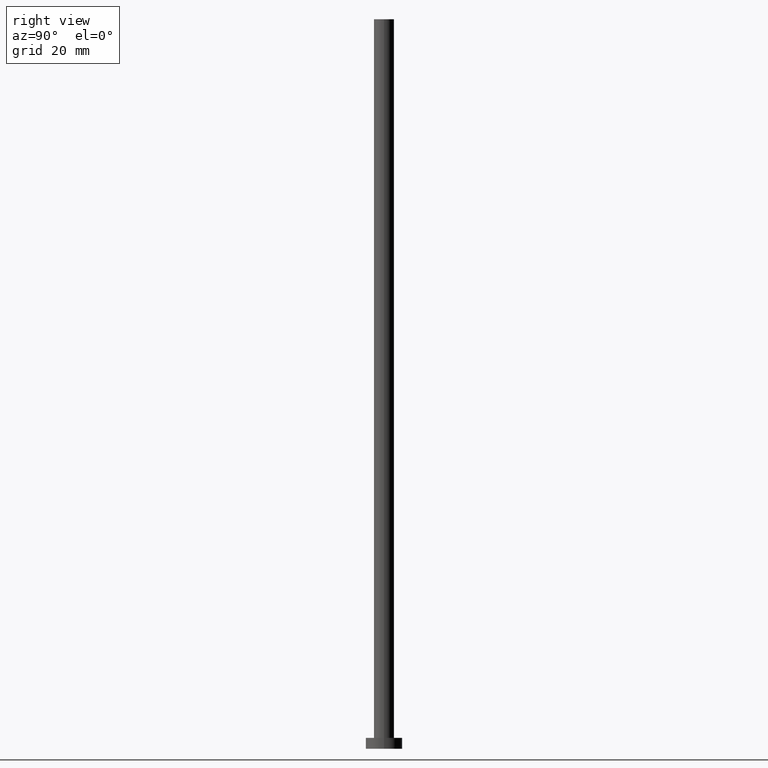
[diagram: clean part render]
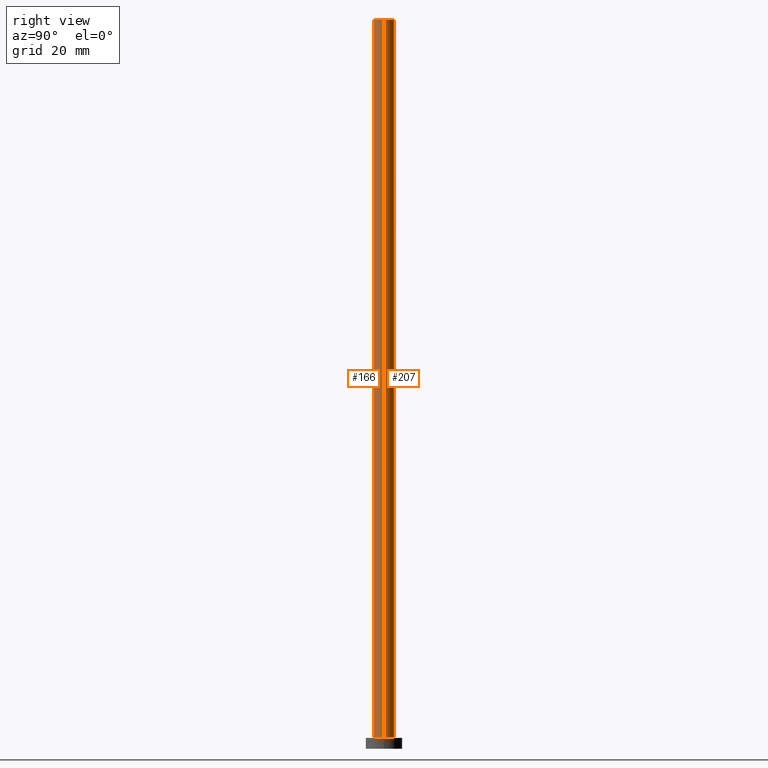
[diagram: same view with one multi-face feature highlighted, each face labeled with its STEP entity id]
A machine part, right view. The highlighted faces form ONE feature: a constant-radius fillet chain: 2 tangent blend faces with common blend radius 2.75 mm. The faces share edges in the B-rep.
Their STEP definitions:
[1] entity #166 (Cylinder):
#5 = ORIENTED_EDGE ( 'NONE', *, *, #229, .T. ) ;
#6 = AXIS2_PLACEMENT_3D ( 'NONE', #184, #46, #92 ) ;
#8 = ORIENTED_EDGE ( 'NONE', *, *, #138, .T. ) ;
#10 = AXIS2_PLACEMENT_3D ( 'NONE', #114, #251, #14 ) ;
#12 = DIRECTION ( 'NONE',  ( -0.000000000000000000, -0.000000000000000000, -1.000000000000000000 ) ) ;
#13 = CARTESIAN_POINT ( 'NONE',  ( 0.000000000000000000, 0.000000000000000000, 200.0000000000000000 ) ) ;
#14 = DIRECTION ( 'NONE',  ( 1.000000000000000000, 0.000000000000000000, 0.000000000000000000 ) ) ;
#18 = EDGE_CURVE ( 'NONE', #27, #128, #221, .T. ) ;
#19 = VERTEX_POINT ( 'NONE', #68 ) ;
#27 = VERTEX_POINT ( 'NONE', #181 ) ;
#29 = CARTESIAN_POINT ( 'NONE',  ( 2.750000000000000000, 3.367778697655221012E-16, 3.000000000000000000 ) ) ;
#39 = ORIENTED_EDGE ( 'NONE', *, *, #82, .F. ) ;
#44 = DIRECTION ( 'NONE',  ( -0.000000000000000000, -0.000000000000000000, -1.000000000000000000 ) ) ;
#46 = DIRECTION ( 'NONE',  ( 0.000000000000000000, 0.000000000000000000, 1.000000000000000000 ) ) ;
#50 = CARTESIAN_POINT ( 'NONE',  ( -2.750000000000000000, 0.000000000000000000, 200.0000000000000000 ) ) ;
#53 = DIRECTION ( 'NONE',  ( -1.000000000000000000, 0.000000000000000000, 0.000000000000000000 ) ) ;
#59 = DIRECTION ( 'NONE',  ( -0.000000000000000000, -0.000000000000000000, -1.000000000000000000 ) ) ;
#68 = CARTESIAN_POINT ( 'NONE',  ( -2.750000000000000000, 0.000000000000000000, 3.000000000000000000 ) ) ;
#82 = EDGE_CURVE ( 'NONE', #128, #136, #90, .T. ) ;
#90 = LINE ( 'NONE', #238, #245 ) ;
#92 = DIRECTION ( 'NONE',  ( 1.000000000000000000, 0.000000000000000000, 0.000000000000000000 ) ) ;
#99 = VECTOR ( 'NONE', #59, 1000.000000000000000 ) ;
#111 = EDGE_LOOP ( 'NONE', ( #39, #135, #8, #5 ) ) ;
#114 = CARTESIAN_POINT ( 'NONE',  ( 0.000000000000000000, 0.000000000000000000, 3.000000000000000000 ) ) ;
#128 = VERTEX_POINT ( 'NONE', #242 ) ;
#135 = ORIENTED_EDGE ( 'NONE', *, *, #18, .F. ) ;
#136 = VERTEX_POINT ( 'NONE', #29 ) ;
#138 = EDGE_CURVE ( 'NONE', #27, #19, #219, .T. ) ;
#157 = FACE_OUTER_BOUND ( 'NONE', #111, .T. ) ;
#166 = ADVANCED_FACE ( 'NONE', ( #157 ), #189, .T. ) ;
#175 = CIRCLE ( 'NONE', #10, 2.750000000000000000 ) ;
#181 = CARTESIAN_POINT ( 'NONE',  ( -2.750000000000000000, 0.000000000000000000, 200.0000000000000000 ) ) ;
#184 = CARTESIAN_POINT ( 'NONE',  ( 0.000000000000000000, 0.000000000000000000, 200.0000000000000000 ) ) ;
#189 = CYLINDRICAL_SURFACE ( 'NONE', #254, 2.750000000000000000 ) ;
#219 = LINE ( 'NONE', #50, #99 ) ;
#221 = CIRCLE ( 'NONE', #6, 2.750000000000000000 ) ;
#229 = EDGE_CURVE ( 'NONE', #19, #136, #175, .T. ) ;
#238 = CARTESIAN_POINT ( 'NONE',  ( 2.750000000000000000, 3.367778697655221012E-16, 200.0000000000000000 ) ) ;
#242 = CARTESIAN_POINT ( 'NONE',  ( 2.750000000000000000, 3.367778697655221012E-16, 200.0000000000000000 ) ) ;
#245 = VECTOR ( 'NONE', #44, 1000.000000000000000 ) ;
#251 = DIRECTION ( 'NONE',  ( 0.000000000000000000, 0.000000000000000000, 1.000000000000000000 ) ) ;
#254 = AXIS2_PLACEMENT_3D ( 'NONE', #13, #12, #53 ) ;
[2] entity #207 (Cylinder):
#9 = CARTESIAN_POINT ( 'NONE',  ( 0.000000000000000000, 0.000000000000000000, 3.000000000000000000 ) ) ;
#16 = FACE_OUTER_BOUND ( 'NONE', #177, .T. ) ;
#19 = VERTEX_POINT ( 'NONE', #68 ) ;
#27 = VERTEX_POINT ( 'NONE', #181 ) ;
#29 = CARTESIAN_POINT ( 'NONE',  ( 2.750000000000000000, 3.367778697655221012E-16, 3.000000000000000000 ) ) ;
#37 = AXIS2_PLACEMENT_3D ( 'NONE', #228, #76, #101 ) ;
#44 = DIRECTION ( 'NONE',  ( -0.000000000000000000, -0.000000000000000000, -1.000000000000000000 ) ) ;
#50 = CARTESIAN_POINT ( 'NONE',  ( -2.750000000000000000, 0.000000000000000000, 200.0000000000000000 ) ) ;
#55 = DIRECTION ( 'NONE',  ( -1.000000000000000000, 0.000000000000000000, 0.000000000000000000 ) ) ;
#59 = DIRECTION ( 'NONE',  ( -0.000000000000000000, -0.000000000000000000, -1.000000000000000000 ) ) ;
#68 = CARTESIAN_POINT ( 'NONE',  ( -2.750000000000000000, 0.000000000000000000, 3.000000000000000000 ) ) ;
#76 = DIRECTION ( 'NONE',  ( 0.000000000000000000, 0.000000000000000000, 1.000000000000000000 ) ) ;
#82 = EDGE_CURVE ( 'NONE', #128, #136, #90, .T. ) ;
#90 = LINE ( 'NONE', #238, #245 ) ;
#95 = ORIENTED_EDGE ( 'NONE', *, *, #82, .T. ) ;
#99 = VECTOR ( 'NONE', #59, 1000.000000000000000 ) ;
#101 = DIRECTION ( 'NONE',  ( 1.000000000000000000, 0.000000000000000000, 0.000000000000000000 ) ) ;
#115 = CIRCLE ( 'NONE', #190, 2.750000000000000000 ) ;
#122 = EDGE_CURVE ( 'NONE', #136, #19, #115, .T. ) ;
#127 = DIRECTION ( 'NONE',  ( 0.000000000000000000, 0.000000000000000000, 1.000000000000000000 ) ) ;
#128 = VERTEX_POINT ( 'NONE', #242 ) ;
#129 = ORIENTED_EDGE ( 'NONE', *, *, #122, .T. ) ;
#136 = VERTEX_POINT ( 'NONE', #29 ) ;
#138 = EDGE_CURVE ( 'NONE', #27, #19, #219, .T. ) ;
#146 = CIRCLE ( 'NONE', #37, 2.750000000000000000 ) ;
#149 = CYLINDRICAL_SURFACE ( 'NONE', #241, 2.750000000000000000 ) ;
#165 = DIRECTION ( 'NONE',  ( 1.000000000000000000, 0.000000000000000000, 0.000000000000000000 ) ) ;
#168 = DIRECTION ( 'NONE',  ( -0.000000000000000000, -0.000000000000000000, -1.000000000000000000 ) ) ;
#171 = CARTESIAN_POINT ( 'NONE',  ( 0.000000000000000000, 0.000000000000000000, 200.0000000000000000 ) ) ;
#174 = EDGE_CURVE ( 'NONE', #128, #27, #146, .T. ) ;
#177 = EDGE_LOOP ( 'NONE', ( #253, #95, #129, #217 ) ) ;
#181 = CARTESIAN_POINT ( 'NONE',  ( -2.750000000000000000, 0.000000000000000000, 200.0000000000000000 ) ) ;
#190 = AXIS2_PLACEMENT_3D ( 'NONE', #9, #127, #165 ) ;
#207 = ADVANCED_FACE ( 'NONE', ( #16 ), #149, .T. ) ;
#217 = ORIENTED_EDGE ( 'NONE', *, *, #138, .F. ) ;
#219 = LINE ( 'NONE', #50, #99 ) ;
#228 = CARTESIAN_POINT ( 'NONE',  ( 0.000000000000000000, 0.000000000000000000, 200.0000000000000000 ) ) ;
#238 = CARTESIAN_POINT ( 'NONE',  ( 2.750000000000000000, 3.367778697655221012E-16, 200.0000000000000000 ) ) ;
#241 = AXIS2_PLACEMENT_3D ( 'NONE', #171, #168, #55 ) ;
#242 = CARTESIAN_POINT ( 'NONE',  ( 2.750000000000000000, 3.367778697655221012E-16, 200.0000000000000000 ) ) ;
#245 = VECTOR ( 'NONE', #44, 1000.000000000000000 ) ;
#253 = ORIENTED_EDGE ( 'NONE', *, *, #174, .F. ) ;